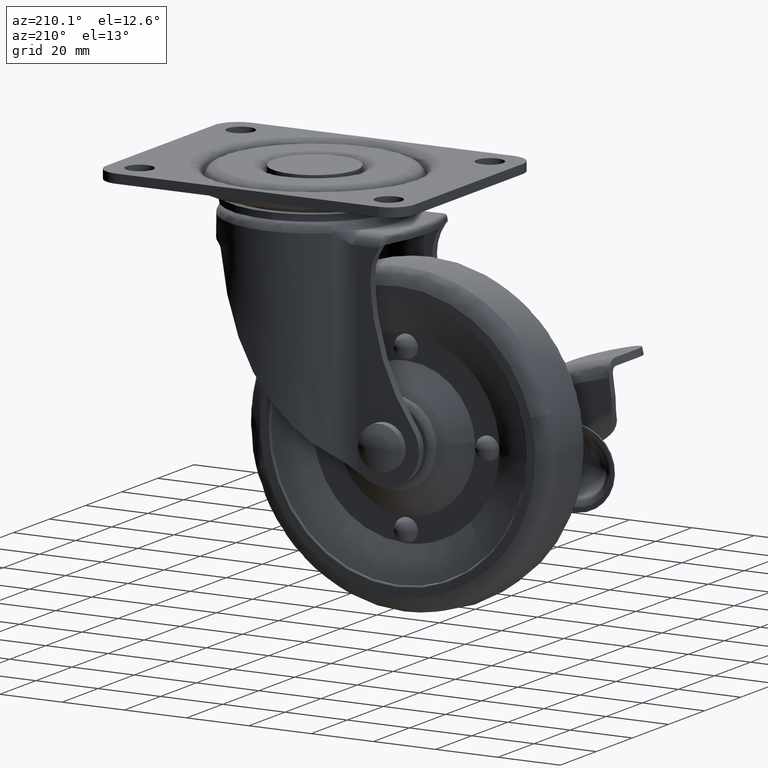
[diagram: clean part render]
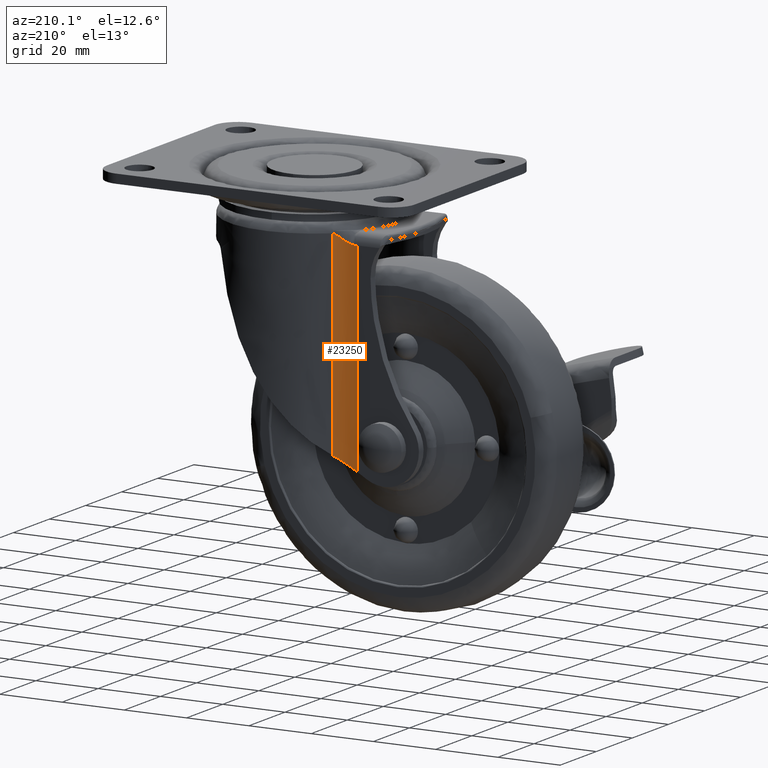
[diagram: same view with one face highlighted and labeled with its STEP entity id]
A machine part, auxiliary view. The second image highlights one B-rep face of the part: STEP entity #23250.
In plain terms, the highlighted face is a freeform B-spline surface patch.
Its self-contained STEP definition (entity closure, byte-faithful):
#22115=CARTESIAN_POINT('',(-24.353478015776801,18.417225999999999,-16.728105268373451));
#22116=VERTEX_POINT('',#22115);
#22126=CARTESIAN_POINT('',(-24.353478015776801,18.417225999999950,-81.193483146101215));
#22127=VERTEX_POINT('',#22126);
#22128=CARTESIAN_POINT('',(-24.353478015776801,18.417225999999999,-16.728105268373451));
#22129=CARTESIAN_POINT('',(-24.353478015776801,18.417225999999950,-81.193483146101215));
#22130=QUASI_UNIFORM_CURVE('',1,(#22128,#22129),.UNSPECIFIED.,.F.,.U.);
#22131=EDGE_CURVE('',#22116,#22127,#22130,.T.);
#22630=CARTESIAN_POINT('',(-17.846202660859849,20.824112840347350,-13.547320495268080));
#22631=VERTEX_POINT('',#22630);
#22637=CARTESIAN_POINT('',(-23.617208933350948,18.444367440977700,-16.709889579108300));
#22638=VERTEX_POINT('',#22637);
#22639=CARTESIAN_POINT('',(-23.617208933350948,18.444367440977700,-16.709889579108300));
#22640=CARTESIAN_POINT('',(-23.464505047328441,18.455641154465081,-16.705726445321080));
#22641=CARTESIAN_POINT('',(-23.314642349671750,18.470222067878939,-16.691521686597831));
#22642=CARTESIAN_POINT('',(-23.019642682477421,18.505467827483589,-16.646797961316249));
#22643=CARTESIAN_POINT('',(-22.874510843072638,18.526134728047928,-16.616258257028850));
#22644=CARTESIAN_POINT('',(-22.588314290480788,18.573180720191392,-16.541455072923920));
#22645=CARTESIAN_POINT('',(-22.447252294547472,18.599560922863230,-16.497180624327061));
#22646=CARTESIAN_POINT('',(-22.238342399120999,18.643216467575190,-16.421926162924589));
#22647=CARTESIAN_POINT('',(-22.169154049025568,18.658449929794180,-16.395363303309502));
#22648=CARTESIAN_POINT('',(-22.031623040086540,18.690254680416089,-16.339483801690442));
#22649=CARTESIAN_POINT('',(-21.963381882582180,18.706806706869969,-16.310200244411210));
#22650=CARTESIAN_POINT('',(-21.627509943731610,18.791950104785180,-16.158976418061901));
#22651=CARTESIAN_POINT('',(-21.372863986171300,18.868257022079209,-16.021752829496251));
#22652=CARTESIAN_POINT('',(-20.883324877514401,19.035067094301251,-15.726061208934810));
#22653=CARTESIAN_POINT('',(-20.648529606248012,19.125587243409019,-15.567456234452660));
#22654=CARTESIAN_POINT('',(-20.193641860060811,19.320140936208890,-15.236182387852740));
#22655=CARTESIAN_POINT('',(-19.973613096561799,19.424157847808299,-15.063407937864930));
#22656=CARTESIAN_POINT('',(-19.651398090505250,19.590841278524731,-14.798814154858711));
#22657=CARTESIAN_POINT('',(-19.545300250418190,19.648189941325828,-14.709713796476681));
#22658=CARTESIAN_POINT('',(-19.335059264149560,19.766790169654062,-14.530893716630850));
#22659=CARTESIAN_POINT('',(-19.231035671148302,19.827975195183111,-14.441251158410999));
#22660=CARTESIAN_POINT('',(-19.024678258903052,19.954452334514599,-14.263706760649891));
#22661=CARTESIAN_POINT('',(-18.922294099933719,20.019764177895969,-14.175696222118670));
#22662=CARTESIAN_POINT('',(-18.717425955161541,20.155867700577222,-14.004493156962781));
#22663=CARTESIAN_POINT('',(-18.615012455989699,20.226590728772099,-13.921151993647090));
#22664=CARTESIAN_POINT('',(-18.458674868520571,20.339143360110480,-13.805141568326670));
#22665=CARTESIAN_POINT('',(-18.406090668065559,20.377757074176909,-13.768011134224221));
#22666=CARTESIAN_POINT('',(-18.325806194740782,20.437984705482339,-13.716085763107429));
#22667=CARTESIAN_POINT('',(-18.298806518972668,20.458448575545919,-13.699413116259340));
#22668=CARTESIAN_POINT('',(-18.244155741006050,20.500322162690729,-13.667708044070350));
#22669=CARTESIAN_POINT('',(-18.216417833157450,20.521799805098379,-13.652631679712160));
#22670=CARTESIAN_POINT('',(-18.076539009462032,20.631326150997740,-13.583078594580810));
#22671=CARTESIAN_POINT('',(-17.963168166947661,20.723873750116880,-13.547320495268069));
#22672=CARTESIAN_POINT('',(-17.846202660859849,20.824112840347350,-13.547320495268060));
#22673=B_SPLINE_CURVE_WITH_KNOTS('',3,(#22639,#22640,#22641,#22642,#22643,#22644,#22645,#22646,#22647,#22648,#22649,#22650,#22651,#22652,#22653,#22654,#22655,#22656,#22657,#22658,#22659,#22660,#22661,#22662,#22663,#22664,#22665,#22666,#22667,#22668,#22669,#22670,#22671,#22672),.UNSPECIFIED.,.F.,.U.,(4,2,2,2,2,2,2,2,2,2,2,2,2,2,2,2,4),(0.0,0.062500000000001,0.125000000000001,0.187500000000002,0.218750000000003,0.250000000000003,0.375000000000002,0.500000000000001,0.625000000000000,0.687500000000000,0.749999999999999,0.812499999999999,0.874999999999998,0.906249999999997,0.921874999999997,0.937499999999997,1.0),.UNSPECIFIED.);
#22674=EDGE_CURVE('',#22638,#22631,#22673,.T.);
#22788=CARTESIAN_POINT('',(-24.353478015776801,18.417225999999999,-16.728105268373451));
#22789=CARTESIAN_POINT('',(-24.106949046062411,18.417225999999999,-16.722684703456409));
#22790=CARTESIAN_POINT('',(-23.861534604502680,18.426329539743360,-16.716550578269260));
#22791=CARTESIAN_POINT('',(-23.617208933350948,18.444367440977729,-16.709889579108381));
#22792=QUASI_UNIFORM_CURVE('',3,(#22788,#22789,#22790,#22791),.UNSPECIFIED.,.F.,.U.);
#22793=EDGE_CURVE('',#22116,#22638,#22792,.T.);
#23205=CARTESIAN_POINT('',(-17.597575939620199,21.044452631898761,-82.884637212372041));
#23206=CARTESIAN_POINT('',(-17.597575939620199,21.044452631898761,-11.813887577340481));
#23207=CARTESIAN_POINT('',(-20.612935297423967,18.281384851478013,-82.884637212372027));
#23208=CARTESIAN_POINT('',(-20.612935297423967,18.281384851478013,-11.813887577340479));
#23209=CARTESIAN_POINT('',(-24.700332002704727,18.423243194744032,-82.884637212372041));
#23210=CARTESIAN_POINT('',(-24.700332002704727,18.423243194744032,-11.813887577340479));
#23218=(BOUNDED_SURFACE()B_SPLINE_SURFACE(1,2,((#23205,#23207,#23209),(#23206,#23208,#23210)),.UNSPECIFIED.,.F.,.F.,.U.)B_SPLINE_SURFACE_WITH_KNOTS((2,2),(3,3),(0.0,71.070749635031561),(0.0,7.863551616980034),.UNSPECIFIED.)GEOMETRIC_REPRESENTATION_ITEM()RATIONAL_B_SPLINE_SURFACE(((1.0,0.921600240311227,0.991416729279298),(1.0,0.921600240311227,0.991416729279298)))REPRESENTATION_ITEM('')SURFACE());
#23219=ORIENTED_EDGE('',*,*,#22131,.F.);
#23220=ORIENTED_EDGE('',*,*,#22793,.T.);
#23221=ORIENTED_EDGE('',*,*,#22674,.T.);
#23222=CARTESIAN_POINT('',(-17.846202660859799,20.824112840347350,-76.803480371900108));
#23223=VERTEX_POINT('',#23222);
#23224=CARTESIAN_POINT('',(-17.846202660859799,20.824112840347350,-76.803480371900108));
#23225=CARTESIAN_POINT('',(-17.846202660859849,20.824112840347350,-13.547320495268080));
#23226=QUASI_UNIFORM_CURVE('',1,(#23224,#23225),.UNSPECIFIED.,.F.,.U.);
#23227=EDGE_CURVE('',#23223,#22631,#23226,.T.);
#23228=ORIENTED_EDGE('',*,*,#23227,.F.);
#23229=CARTESIAN_POINT('',(-24.353478015776801,18.417225999999999,-81.193483146101215));
#23230=CARTESIAN_POINT('',(-23.756784806942321,18.417225999999999,-80.825807535487883));
#23231=CARTESIAN_POINT('',(-23.172609366321680,18.470174850071292,-80.456758786962553));
#23232=CARTESIAN_POINT('',(-22.027399454490642,18.674144563755661,-79.716186065789145));
#23233=CARTESIAN_POINT('',(-21.466372567782710,18.825190497829389,-79.344658904874322));
#23234=CARTESIAN_POINT('',(-20.779364119069630,19.076609449831281,-78.879433183422634));
#23235=CARTESIAN_POINT('',(-20.642679914281850,19.130048095654999,-78.786349653127701));
#23236=CARTESIAN_POINT('',(-20.370757115767560,19.243370201610642,-78.600134931055621));
#23237=CARTESIAN_POINT('',(-20.235329675247129,19.303343260704210,-78.506872813680758));
#23238=CARTESIAN_POINT('',(-19.832554635603660,19.492582077043309,-78.227976226355281));
#23239=CARTESIAN_POINT('',(-19.570050242687412,19.630471425404291,-78.044163621957182));
#23240=CARTESIAN_POINT('',(-19.056927846580759,19.929894645579399,-77.681134626041697));
#23241=CARTESIAN_POINT('',(-18.806309088636191,20.091425984061640,-77.501917015057757));
#23242=CARTESIAN_POINT('',(-18.317109123758389,20.438988123682581,-77.148634661382630));
#23243=CARTESIAN_POINT('',(-18.078525640000461,20.625012739406390,-76.974567549440479));
#23244=CARTESIAN_POINT('',(-17.846202660859799,20.824112840347350,-76.803480371900108));
#23245=B_SPLINE_CURVE_WITH_KNOTS('',3,(#23229,#23230,#23231,#23232,#23233,#23234,#23235,#23236,#23237,#23238,#23239,#23240,#23241,#23242,#23243,#23244),.UNSPECIFIED.,.F.,.U.,(4,2,2,2,2,2,2,4),(0.0,0.250000000000003,0.500000000000006,0.562500000000005,0.625000000000004,0.750000000000003,0.875000000000001,1.0),.UNSPECIFIED.);
#23246=EDGE_CURVE('',#22127,#23223,#23245,.T.);
#23247=ORIENTED_EDGE('',*,*,#23246,.F.);
#23248=EDGE_LOOP('',(#23219,#23220,#23221,#23228,#23247));
#23249=FACE_OUTER_BOUND('',#23248,.T.);
#23250=ADVANCED_FACE('',(#23249),#23218,.F.);